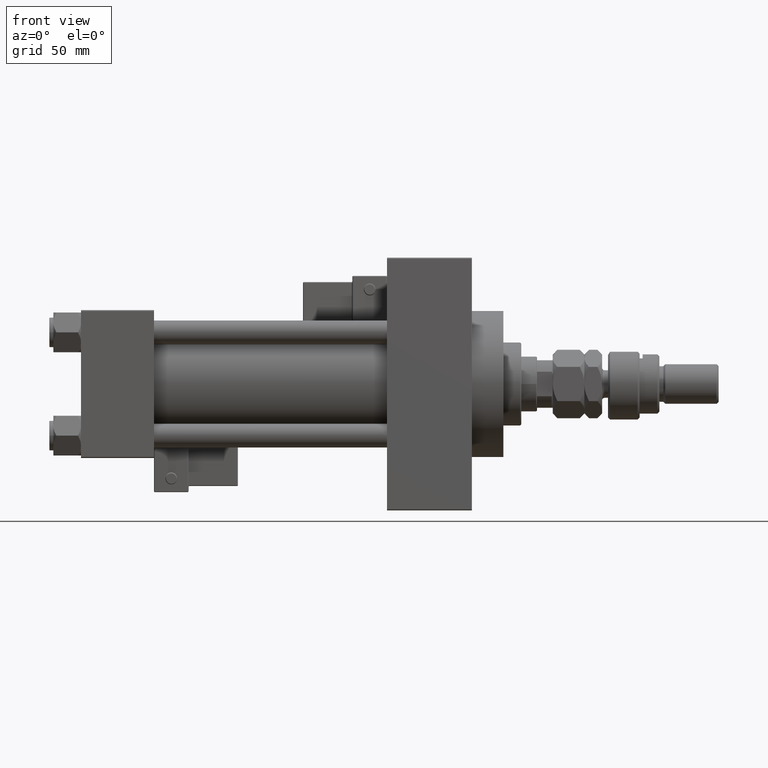
[diagram: clean part render]
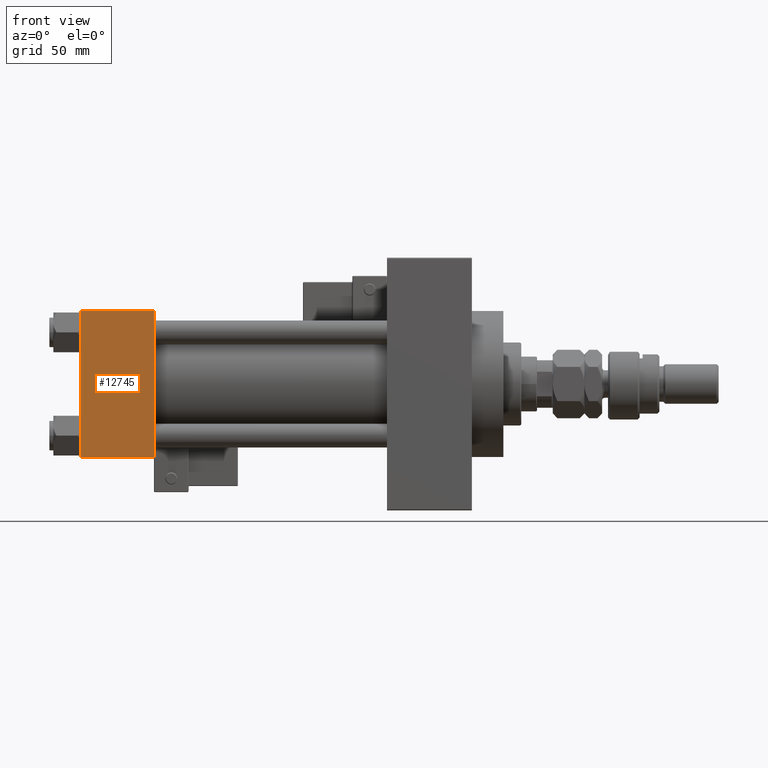
[diagram: same view with one face highlighted and labeled with its STEP entity id]
A machine part, front view. The second image highlights one B-rep face of the part: STEP entity #12745.
In plain terms, the highlighted planar face has unit normal (0, 1, 0).
Its self-contained STEP definition (entity closure, byte-faithful):
#1098 = CARTESIAN_POINT ( 'NONE',  ( 0.000000000000000000, -37.50000000000000711, 36.99999999999999289 ) ) ;
#3955 = LINE ( 'NONE', #44265, #13055 ) ;
#4921 = VERTEX_POINT ( 'NONE', #1098 ) ;
#6064 = CARTESIAN_POINT ( 'NONE',  ( 37.00000000000000000, -37.50000000000000711, 36.99999999999999289 ) ) ;
#7903 = CARTESIAN_POINT ( 'NONE',  ( 37.00000000000000000, -37.50000000000000711, 36.99999999999999289 ) ) ;
#8070 = PLANE ( 'NONE',  #40683 ) ;
#8340 = CARTESIAN_POINT ( 'NONE',  ( 37.00000000000000000, -37.50000000000000000, -37.00000000000003553 ) ) ;
#8959 = LINE ( 'NONE', #33124, #48688 ) ;
#9896 = VECTOR ( 'NONE', #24102, 1000.000000000000000 ) ;
#10690 = CARTESIAN_POINT ( 'NONE',  ( 0.000000000000000000, -37.50000000000000000, -37.00000000000003553 ) ) ;
#12745 = ADVANCED_FACE ( 'NONE', ( #28253 ), #8070, .F. ) ;
#13055 = VECTOR ( 'NONE', #28113, 1000.000000000000000 ) ;
#13806 = EDGE_LOOP ( 'NONE', ( #25279, #29173, #22967, #15969 ) ) ;
#15969 = ORIENTED_EDGE ( 'NONE', *, *, #51991, .T. ) ;
#16562 = CARTESIAN_POINT ( 'NONE',  ( 37.00000000000000000, -37.50000000000000711, 37.49999999999999289 ) ) ;
#17094 = DIRECTION ( 'NONE',  ( 0.000000000000000000, -9.251858538542971581E-17, 1.000000000000000000 ) ) ;
#19308 = DIRECTION ( 'NONE',  ( 0.000000000000000000, 9.251858538542971581E-17, -1.000000000000000000 ) ) ;
#22643 = EDGE_CURVE ( 'NONE', #34758, #30632, #3955, .T. ) ;
#22967 = ORIENTED_EDGE ( 'NONE', *, *, #32016, .F. ) ;
#24102 = DIRECTION ( 'NONE',  ( -1.000000000000000000, 0.000000000000000000, 0.000000000000000000 ) ) ;
#25173 = VECTOR ( 'NONE', #19308, 1000.000000000000000 ) ;
#25279 = ORIENTED_EDGE ( 'NONE', *, *, #44878, .T. ) ;
#25583 = CARTESIAN_POINT ( 'NONE',  ( 37.00000000000000000, -37.50000000000000711, 37.49999999999999289 ) ) ;
#28113 = DIRECTION ( 'NONE',  ( 1.000000000000000000, 0.000000000000000000, 0.000000000000000000 ) ) ;
#28253 = FACE_OUTER_BOUND ( 'NONE', #13806, .T. ) ;
#29173 = ORIENTED_EDGE ( 'NONE', *, *, #22643, .T. ) ;
#30052 = VERTEX_POINT ( 'NONE', #6064 ) ;
#30632 = VERTEX_POINT ( 'NONE', #8340 ) ;
#32016 = EDGE_CURVE ( 'NONE', #30052, #30632, #47398, .T. ) ;
#33124 = CARTESIAN_POINT ( 'NONE',  ( 0.000000000000000000, -37.50000000000000711, 37.49999999999999289 ) ) ;
#34758 = VERTEX_POINT ( 'NONE', #10690 ) ;
#38048 = DIRECTION ( 'NONE',  ( -0.000000000000000000, 1.000000000000000000, 9.251858538542971581E-17 ) ) ;
#40683 = AXIS2_PLACEMENT_3D ( 'NONE', #25583, #38048, #17094 ) ;
#44243 = LINE ( 'NONE', #7903, #9896 ) ;
#44265 = CARTESIAN_POINT ( 'NONE',  ( 37.00000000000000000, -37.50000000000000000, -37.00000000000003553 ) ) ;
#44878 = EDGE_CURVE ( 'NONE', #4921, #34758, #8959, .T. ) ;
#47398 = LINE ( 'NONE', #16562, #25173 ) ;
#48688 = VECTOR ( 'NONE', #49793, 1000.000000000000000 ) ;
#49793 = DIRECTION ( 'NONE',  ( 0.000000000000000000, 9.251858538542971581E-17, -1.000000000000000000 ) ) ;
#51991 = EDGE_CURVE ( 'NONE', #30052, #4921, #44243, .T. ) ;